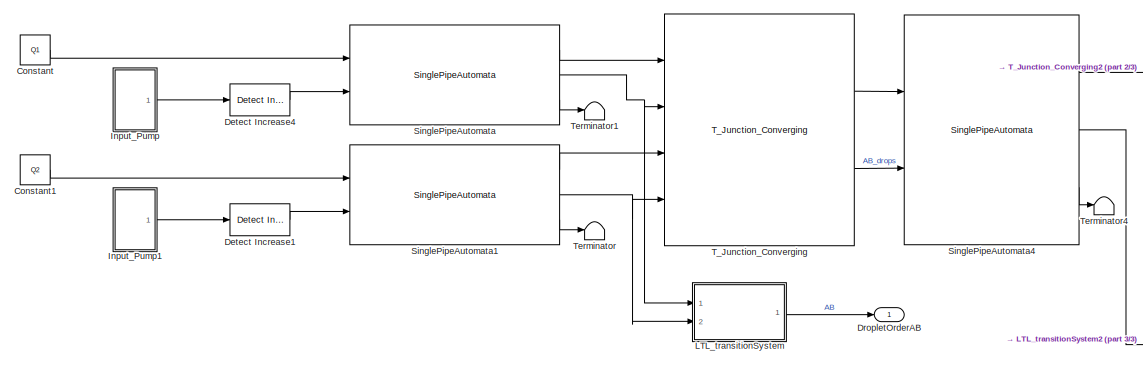
[diagram: root canvas - part 1/3, top left region]
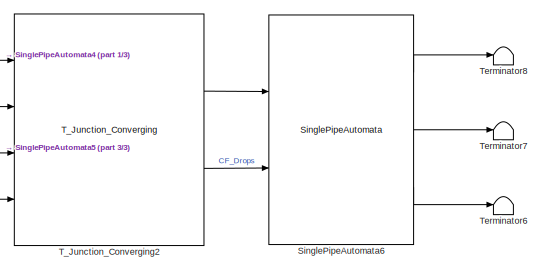
[diagram: root canvas - part 2/3, middle right region]
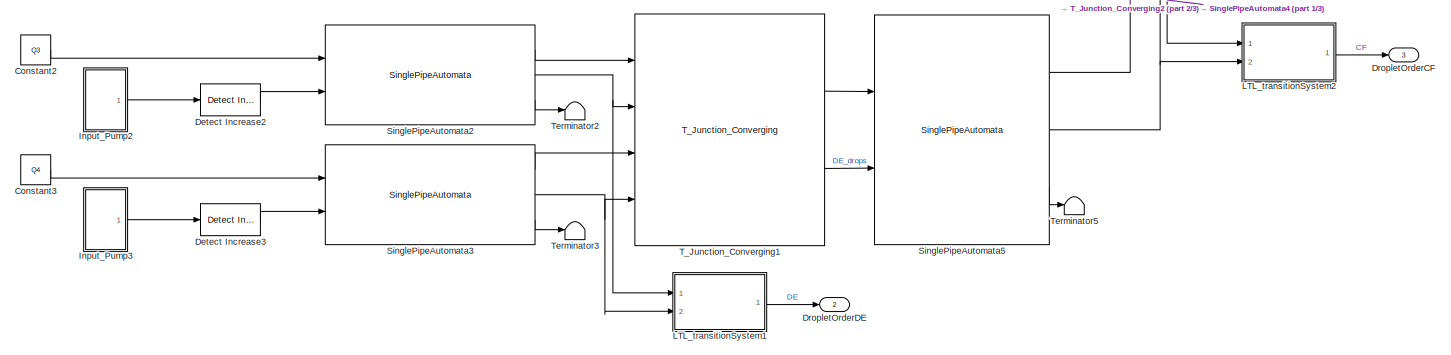
[diagram: root canvas - part 3/3, full width, bottom band]
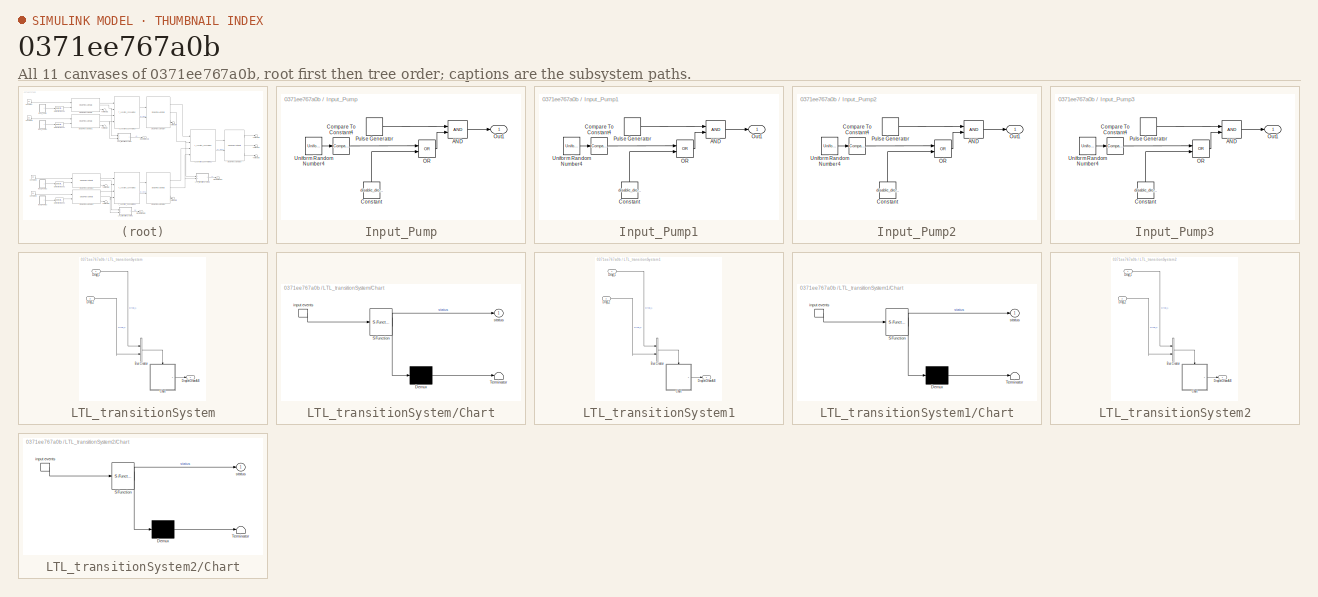
[diagram: thumbnail index - all 11 canvases of the model, root first then tree order]
MODEL slx_0371ee767a0b
KIND model
CONFIG AbsTol = auto
CONFIG EnableMultiTasking = off
CONFIG FixedStep = dt
CONFIG MaxStep = auto
CONFIG MinStep = auto
CONFIG RelTol = 1e-3
CONFIG SampleTimeConstraint = Unconstrained
CONFIG Solver = FixedStepAuto
CONFIG SolverName = FixedStepAuto
CONFIG StartTime = 0.0
CONFIG StopTime = 0.5
BLOCK [Constant] Constant
  Value = Q1
BLOCK [Constant] Constant1
  Value = Q2
BLOCK [Constant] Constant2
  Value = Q3
BLOCK [Constant] Constant3
  Value = Q4
BLOCK [Reference] Detect Increase1  REF=simulink/Logic and Bit
Operations/Detect
Increase
  Ports = [1, 1]
  SourceBlock = simulink/Logic and Bit\nOperations/Detect\nIncrease
  SourceProductBaseCode = SL
  SourceProductName = Simulink
  SourceType = Detect Increase
BLOCK [Reference] Detect Increase2  REF=simulink/Logic and Bit
Operations/Detect
Increase
  Ports = [1, 1]
  SourceBlock = simulink/Logic and Bit\nOperations/Detect\nIncrease
  SourceProductBaseCode = SL
  SourceProductName = Simulink
  SourceType = Detect Increase
BLOCK [Reference] Detect Increase3  REF=simulink/Logic and Bit
Operations/Detect
Increase
  Ports = [1, 1]
  SourceBlock = simulink/Logic and Bit\nOperations/Detect\nIncrease
  SourceProductBaseCode = SL
  SourceProductName = Simulink
  SourceType = Detect Increase
BLOCK [Reference] Detect Increase4  REF=simulink/Logic and Bit
Operations/Detect
Increase
  Ports = [1, 1]
  SourceBlock = simulink/Logic and Bit\nOperations/Detect\nIncrease
  SourceProductBaseCode = SL
  SourceProductName = Simulink
  SourceType = Detect Increase
BLOCK [Outport] DropletOrderAB
  IconDisplay = Port number
BLOCK [Outport] DropletOrderCF
  IconDisplay = Port number
  Port = 3
BLOCK [Outport] DropletOrderDE
  IconDisplay = Port number
  Port = 2
BLOCK [SubSystem] Input_Pump
  Ports = [0, 1]
  RequestExecContextInheritance = off
BLOCK [Logic] Input_Pump/AND
  AllPortsSameDT = off
  IconShape = distinctive
  OutDataTypeStr = boolean
  Ports = [2, 1]
BLOCK [Reference] Input_Pump/Compare To Constant4  REF=simulink/Logic and Bit
Operations/Compare
To Constant
  Ports = [1, 1]
  SourceBlock = simulink/Logic and Bit\nOperations/Compare\nTo Constant
  SourceProductBaseCode = SL
  SourceProductName = Simulink
  SourceType = Compare To Constant
BLOCK [Constant] Input_Pump/Constant
  Value = disable_droplet_faults
BLOCK [Logic] Input_Pump/OR
  AllPortsSameDT = off
  IconShape = distinctive
  Operator = OR
  OutDataTypeStr = boolean
  Ports = [2, 1]
BLOCK [Outport] Input_Pump/Out1
  IconDisplay = Port number
BLOCK [DiscretePulseGenerator] Input_Pump/Pulse Generator
  Period = Period
  PhaseDelay = PhaseDelay
  Ports = [0, 1]
  PulseType = Time based
  PulseWidth = 50
BLOCK [UniformRandomNumber] Input_Pump/Uniform Random Number4
  SampleTime = 0.001
  Seed = Seed
BLOCK [SubSystem] Input_Pump1
  Ports = [0, 1]
  RequestExecContextInheritance = off
BLOCK [Logic] Input_Pump1/AND
  AllPortsSameDT = off
  IconShape = distinctive
  OutDataTypeStr = boolean
  Ports = [2, 1]
BLOCK [Reference] Input_Pump1/Compare To Constant4  REF=simulink/Logic and Bit
Operations/Compare
To Constant
  Ports = [1, 1]
  SourceBlock = simulink/Logic and Bit\nOperations/Compare\nTo Constant
  SourceProductBaseCode = SL
  SourceProductName = Simulink
  SourceType = Compare To Constant
BLOCK [Constant] Input_Pump1/Constant
  Value = disable_droplet_faults
BLOCK [Logic] Input_Pump1/OR
  AllPortsSameDT = off
  IconShape = distinctive
  Operator = OR
  OutDataTypeStr = boolean
  Ports = [2, 1]
BLOCK [Outport] Input_Pump1/Out1
  IconDisplay = Port number
BLOCK [DiscretePulseGenerator] Input_Pump1/Pulse Generator
  Period = Period
  PhaseDelay = PhaseDelay
  Ports = [0, 1]
  PulseType = Time based
  PulseWidth = 50
BLOCK [UniformRandomNumber] Input_Pump1/Uniform Random Number4
  SampleTime = 0.001
  Seed = Seed
BLOCK [SubSystem] Input_Pump2
  Ports = [0, 1]
  RequestExecContextInheritance = off
BLOCK [Logic] Input_Pump2/AND
  AllPortsSameDT = off
  IconShape = distinctive
  OutDataTypeStr = boolean
  Ports = [2, 1]
BLOCK [Reference] Input_Pump2/Compare To Constant4  REF=simulink/Logic and Bit
Operations/Compare
To Constant
  Ports = [1, 1]
  SourceBlock = simulink/Logic and Bit\nOperations/Compare\nTo Constant
  SourceProductBaseCode = SL
  SourceProductName = Simulink
  SourceType = Compare To Constant
BLOCK [Constant] Input_Pump2/Constant
  Value = disable_droplet_faults
BLOCK [Logic] Input_Pump2/OR
  AllPortsSameDT = off
  IconShape = distinctive
  Operator = OR
  OutDataTypeStr = boolean
  Ports = [2, 1]
BLOCK [Outport] Input_Pump2/Out1
  IconDisplay = Port number
BLOCK [DiscretePulseGenerator] Input_Pump2/Pulse Generator
  Period = Period
  PhaseDelay = PhaseDelay
  Ports = [0, 1]
  PulseType = Time based
  PulseWidth = 50
BLOCK [UniformRandomNumber] Input_Pump2/Uniform Random Number4
  SampleTime = 0.001
  Seed = Seed
BLOCK [SubSystem] Input_Pump3
  Ports = [0, 1]
  RequestExecContextInheritance = off
BLOCK [Logic] Input_Pump3/AND
  AllPortsSameDT = off
  IconShape = distinctive
  OutDataTypeStr = boolean
  Ports = [2, 1]
BLOCK [Reference] Input_Pump3/Compare To Constant4  REF=simulink/Logic and Bit
Operations/Compare
To Constant
  Ports = [1, 1]
  SourceBlock = simulink/Logic and Bit\nOperations/Compare\nTo Constant
  SourceProductBaseCode = SL
  SourceProductName = Simulink
  SourceType = Compare To Constant
BLOCK [Constant] Input_Pump3/Constant
  Value = disable_droplet_faults
BLOCK [Logic] Input_Pump3/OR
  AllPortsSameDT = off
  IconShape = distinctive
  Operator = OR
  OutDataTypeStr = boolean
  Ports = [2, 1]
BLOCK [Outport] Input_Pump3/Out1
  IconDisplay = Port number
BLOCK [DiscretePulseGenerator] Input_Pump3/Pulse Generator
  Period = Period
  PhaseDelay = PhaseDelay
  Ports = [0, 1]
  PulseType = Time based
  PulseWidth = 50
BLOCK [UniformRandomNumber] Input_Pump3/Uniform Random Number4
  SampleTime = 0.001
  Seed = Seed
BLOCK [SubSystem] LTL_transitionSystem
  Ports = [2, 1]
  RequestExecContextInheritance = off
BLOCK [BusCreator] LTL_transitionSystem/Bus Creator
  DisplayOption = bar
  InheritFromInputs = on
  Inputs = 2
  Ports = [2, 1]
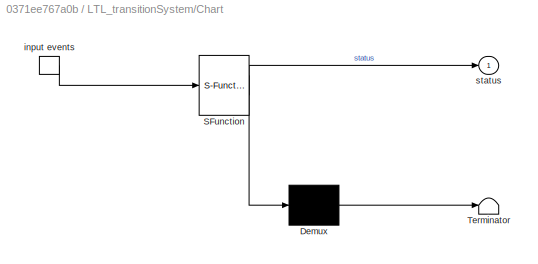
BLOCK [SubSystem] LTL_transitionSystem/Chart
  BlockKeywords = __PRM__SERIALIZED__DATA__:Stateflow Chart,Stateflow Diagram
  ErrorFcn = Stateflow.Translate.translate
  PermitHierarchicalResolution = ExplicitOnly
  Ports = [0, 1, 0, 1]
  RequestExecContextInheritance = off
  SFBlockType = Chart
  TreatAsAtomicUnit = on
BLOCK [Demux] LTL_transitionSystem/Chart/ Demux 
  Outputs = 1
  Ports = [1, 1]
BLOCK [S-Function] LTL_transitionSystem/Chart/ SFunction 
  EnableBusSupport = on
  FunctionName = sf_sfun
  PortCounts = [1 2]
  Ports = [1, 2]
  SFcnIsStateOwnerBlock = off
  SFunctionDeploymentMode = off
  Tag = Stateflow S-Function Realistic_Model 3
BLOCK [Terminator] LTL_transitionSystem/Chart/ Terminator 
BLOCK [TriggerPort] LTL_transitionSystem/Chart/input events
  Ports = [0, 1]
  ShowOutputPort = on
  StatesWhenEnabling = held
  VariantControl = (inherit)
BLOCK [Outport] LTL_transitionSystem/Chart/status
  IconDisplay = Port number
BLOCK [Inport] LTL_transitionSystem/Drop_1
  IconDisplay = Port number
BLOCK [Inport] LTL_transitionSystem/Drop_2
  IconDisplay = Port number
  Port = 2
BLOCK [Outport] LTL_transitionSystem/DropletOrderAB
  IconDisplay = Port number
BLOCK [SubSystem] LTL_transitionSystem1
  Ports = [2, 1]
  RequestExecContextInheritance = off
BLOCK [BusCreator] LTL_transitionSystem1/Bus Creator
  DisplayOption = bar
  InheritFromInputs = on
  Inputs = 2
  Ports = [2, 1]
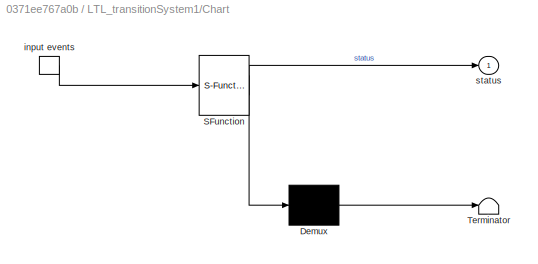
BLOCK [SubSystem] LTL_transitionSystem1/Chart
  BlockKeywords = __PRM__SERIALIZED__DATA__:Stateflow Chart,Stateflow Diagram
  ErrorFcn = Stateflow.Translate.translate
  PermitHierarchicalResolution = ExplicitOnly
  Ports = [0, 1, 0, 1]
  RequestExecContextInheritance = off
  SFBlockType = Chart
  TreatAsAtomicUnit = on
BLOCK [Demux] LTL_transitionSystem1/Chart/ Demux 
  Outputs = 1
  Ports = [1, 1]
BLOCK [S-Function] LTL_transitionSystem1/Chart/ SFunction 
  EnableBusSupport = on
  FunctionName = sf_sfun
  PortCounts = [1 2]
  Ports = [1, 2]
  SFcnIsStateOwnerBlock = off
  SFunctionDeploymentMode = off
  Tag = Stateflow S-Function Realistic_Model 1
BLOCK [Terminator] LTL_transitionSystem1/Chart/ Terminator 
BLOCK [TriggerPort] LTL_transitionSystem1/Chart/input events
  Ports = [0, 1]
  ShowOutputPort = on
  StatesWhenEnabling = held
  VariantControl = (inherit)
BLOCK [Outport] LTL_transitionSystem1/Chart/status
  IconDisplay = Port number
BLOCK [Inport] LTL_transitionSystem1/Drop_1
  IconDisplay = Port number
BLOCK [Inport] LTL_transitionSystem1/Drop_2
  IconDisplay = Port number
  Port = 2
BLOCK [Outport] LTL_transitionSystem1/DropletOrderAB
  IconDisplay = Port number
BLOCK [SubSystem] LTL_transitionSystem2
  Ports = [2, 1]
  RequestExecContextInheritance = off
BLOCK [BusCreator] LTL_transitionSystem2/Bus Creator
  DisplayOption = bar
  InheritFromInputs = on
  Inputs = 2
  Ports = [2, 1]
BLOCK [SubSystem] LTL_transitionSystem2/Chart
  BlockKeywords = __PRM__SERIALIZED__DATA__:Stateflow Chart,Stateflow Diagram
  ErrorFcn = Stateflow.Translate.translate
  PermitHierarchicalResolution = ExplicitOnly
  Ports = [0, 1, 0, 1]
  RequestExecContextInheritance = off
  SFBlockType = Chart
  TreatAsAtomicUnit = on
BLOCK [Demux] LTL_transitionSystem2/Chart/ Demux 
  Outputs = 1
  Ports = [1, 1]
BLOCK [S-Function] LTL_transitionSystem2/Chart/ SFunction 
  EnableBusSupport = on
  FunctionName = sf_sfun
  PortCounts = [1 2]
  Ports = [1, 2]
  SFcnIsStateOwnerBlock = off
  SFunctionDeploymentMode = off
  Tag = Stateflow S-Function Realistic_Model 2
BLOCK [Terminator] LTL_transitionSystem2/Chart/ Terminator 
BLOCK [TriggerPort] LTL_transitionSystem2/Chart/input events
  Ports = [0, 1]
  ShowOutputPort = on
  StatesWhenEnabling = held
  VariantControl = (inherit)
BLOCK [Outport] LTL_transitionSystem2/Chart/status
  IconDisplay = Port number
BLOCK [Inport] LTL_transitionSystem2/Drop_1
  IconDisplay = Port number
BLOCK [Inport] LTL_transitionSystem2/Drop_2
  IconDisplay = Port number
  Port = 2
BLOCK [Outport] LTL_transitionSystem2/DropletOrderAB
  IconDisplay = Port number
BLOCK [Reference] SinglePipeAutomata  REF=SinglePipe_lib/SinglePipeAutomata
  Ports = [2, 3]
  SourceBlock = SinglePipe_lib/SinglePipeAutomata
BLOCK [Reference] SinglePipeAutomata1  REF=SinglePipe_lib/SinglePipeAutomata
  Ports = [2, 3]
  SourceBlock = SinglePipe_lib/SinglePipeAutomata
BLOCK [Reference] SinglePipeAutomata2  REF=SinglePipe_lib/SinglePipeAutomata
  Ports = [2, 3]
  SourceBlock = SinglePipe_lib/SinglePipeAutomata
BLOCK [Reference] SinglePipeAutomata3  REF=SinglePipe_lib/SinglePipeAutomata
  Ports = [2, 3]
  SourceBlock = SinglePipe_lib/SinglePipeAutomata
BLOCK [Reference] SinglePipeAutomata4  REF=SinglePipe_lib/SinglePipeAutomata
  Ports = [2, 3]
  SourceBlock = SinglePipe_lib/SinglePipeAutomata
BLOCK [Reference] SinglePipeAutomata5  REF=SinglePipe_lib/SinglePipeAutomata
  Ports = [2, 3]
  SourceBlock = SinglePipe_lib/SinglePipeAutomata
BLOCK [Reference] SinglePipeAutomata6  REF=SinglePipe_lib/SinglePipeAutomata
  Ports = [2, 3]
  SourceBlock = SinglePipe_lib/SinglePipeAutomata
BLOCK [Reference] T_Junction_Converging  REF=Junction_Lib/T_Junction_Converging
  Ports = [4, 2]
  SourceBlock = Junction_Lib/T_Junction_Converging
  SourceType = SubSystem
BLOCK [Reference] T_Junction_Converging1  REF=Junction_Lib/T_Junction_Converging
  Ports = [4, 2]
  SourceBlock = Junction_Lib/T_Junction_Converging
  SourceType = SubSystem
BLOCK [Reference] T_Junction_Converging2  REF=Junction_Lib/T_Junction_Converging
  Ports = [4, 2]
  SourceBlock = Junction_Lib/T_Junction_Converging
  SourceType = SubSystem
BLOCK [Terminator] Terminator
BLOCK [Terminator] Terminator1
BLOCK [Terminator] Terminator2
BLOCK [Terminator] Terminator3
BLOCK [Terminator] Terminator4
BLOCK [Terminator] Terminator5
BLOCK [Terminator] Terminator6
BLOCK [Terminator] Terminator7
BLOCK [Terminator] Terminator8
LINE Constant1:1 -> SinglePipeAutomata1:1
LINE Constant2:1 -> SinglePipeAutomata2:1
LINE Constant3:1 -> SinglePipeAutomata3:1
LINE Constant:1 -> SinglePipeAutomata:1
LINE Detect Increase1:1 -> SinglePipeAutomata1:2
LINE Detect Increase2:1 -> SinglePipeAutomata2:2
LINE Detect Increase3:1 -> SinglePipeAutomata3:2
LINE Detect Increase4:1 -> SinglePipeAutomata:2
LINE Input_Pump/AND:1 -> Input_Pump/Out1:1
LINE Input_Pump/Compare To Constant4:1 -> Input_Pump/OR:1
LINE Input_Pump/Constant:1 -> Input_Pump/OR:2
LINE Input_Pump/OR:1 -> Input_Pump/AND:2
LINE Input_Pump/Pulse Generator:1 -> Input_Pump/AND:1
LINE Input_Pump/Uniform Random Number4:1 -> Input_Pump/Compare To Constant4:1
LINE Input_Pump1/AND:1 -> Input_Pump1/Out1:1
LINE Input_Pump1/Compare To Constant4:1 -> Input_Pump1/OR:1
LINE Input_Pump1/Constant:1 -> Input_Pump1/OR:2
LINE Input_Pump1/OR:1 -> Input_Pump1/AND:2
LINE Input_Pump1/Pulse Generator:1 -> Input_Pump1/AND:1
LINE Input_Pump1/Uniform Random Number4:1 -> Input_Pump1/Compare To Constant4:1
LINE Input_Pump1:1 -> Detect Increase1:1
LINE Input_Pump2/AND:1 -> Input_Pump2/Out1:1
LINE Input_Pump2/Compare To Constant4:1 -> Input_Pump2/OR:1
LINE Input_Pump2/Constant:1 -> Input_Pump2/OR:2
LINE Input_Pump2/OR:1 -> Input_Pump2/AND:2
LINE Input_Pump2/Pulse Generator:1 -> Input_Pump2/AND:1
LINE Input_Pump2/Uniform Random Number4:1 -> Input_Pump2/Compare To Constant4:1
LINE Input_Pump2:1 -> Detect Increase2:1
LINE Input_Pump3/AND:1 -> Input_Pump3/Out1:1
LINE Input_Pump3/Compare To Constant4:1 -> Input_Pump3/OR:1
LINE Input_Pump3/Constant:1 -> Input_Pump3/OR:2
LINE Input_Pump3/OR:1 -> Input_Pump3/AND:2
LINE Input_Pump3/Pulse Generator:1 -> Input_Pump3/AND:1
LINE Input_Pump3/Uniform Random Number4:1 -> Input_Pump3/Compare To Constant4:1
LINE Input_Pump3:1 -> Detect Increase3:1
LINE Input_Pump:1 -> Detect Increase4:1
LINE LTL_transitionSystem/Bus Creator:1 -> LTL_transitionSystem/Chart:trigger
LINE LTL_transitionSystem/Chart:1 -> LTL_transitionSystem/DropletOrderAB:1
LINE LTL_transitionSystem/Drop_1:1 -> LTL_transitionSystem/Bus Creator:1
LINE LTL_transitionSystem/Drop_2:1 -> LTL_transitionSystem/Bus Creator:2
LINE LTL_transitionSystem1/Bus Creator:1 -> LTL_transitionSystem1/Chart:trigger
LINE LTL_transitionSystem1/Chart:1 -> LTL_transitionSystem1/DropletOrderAB:1
LINE LTL_transitionSystem1/Drop_1:1 -> LTL_transitionSystem1/Bus Creator:1
LINE LTL_transitionSystem1/Drop_2:1 -> LTL_transitionSystem1/Bus Creator:2
LINE LTL_transitionSystem1:1 -> DropletOrderDE:1
LINE LTL_transitionSystem2/Bus Creator:1 -> LTL_transitionSystem2/Chart:trigger
LINE LTL_transitionSystem2/Chart:1 -> LTL_transitionSystem2/DropletOrderAB:1
LINE LTL_transitionSystem2/Drop_1:1 -> LTL_transitionSystem2/Bus Creator:1
LINE LTL_transitionSystem2/Drop_2:1 -> LTL_transitionSystem2/Bus Creator:2
LINE LTL_transitionSystem2:1 -> DropletOrderCF:1
LINE LTL_transitionSystem:1 -> DropletOrderAB:1
LINE SinglePipeAutomata1:1 -> T_Junction_Converging:3
NET SinglePipeAutomata1:2 -> LTL_transitionSystem:2, T_Junction_Converging:4
LINE SinglePipeAutomata1:3 -> Terminator:1
LINE SinglePipeAutomata2:1 -> T_Junction_Converging1:1
NET SinglePipeAutomata2:2 -> LTL_transitionSystem1:1, T_Junction_Converging1:2
LINE SinglePipeAutomata2:3 -> Terminator2:1
LINE SinglePipeAutomata3:1 -> T_Junction_Converging1:3
NET SinglePipeAutomata3:2 -> LTL_transitionSystem1:2, T_Junction_Converging1:4
LINE SinglePipeAutomata3:3 -> Terminator3:1
LINE SinglePipeAutomata4:1 -> T_Junction_Converging2:1
NET SinglePipeAutomata4:2 -> LTL_transitionSystem2:1, T_Junction_Converging2:2
LINE SinglePipeAutomata4:3 -> Terminator4:1
LINE SinglePipeAutomata5:1 -> T_Junction_Converging2:3
NET SinglePipeAutomata5:2 -> LTL_transitionSystem2:2, T_Junction_Converging2:4
LINE SinglePipeAutomata5:3 -> Terminator5:1
LINE SinglePipeAutomata6:1 -> Terminator8:1
LINE SinglePipeAutomata6:2 -> Terminator7:1
LINE SinglePipeAutomata6:3 -> Terminator6:1
LINE SinglePipeAutomata:1 -> T_Junction_Converging:1
NET SinglePipeAutomata:2 -> LTL_transitionSystem:1, T_Junction_Converging:2
LINE SinglePipeAutomata:3 -> Terminator1:1
LINE T_Junction_Converging1:1 -> SinglePipeAutomata5:1
LINE T_Junction_Converging1:2 -> SinglePipeAutomata5:2
LINE T_Junction_Converging2:1 -> SinglePipeAutomata6:1
LINE T_Junction_Converging2:2 -> SinglePipeAutomata6:2
LINE T_Junction_Converging:1 -> SinglePipeAutomata4:1
LINE T_Junction_Converging:2 -> SinglePipeAutomata4:2
note: NET lines group one-source signal fan-out (src -> all destinations, sorted); 1:1 wires keep LINE
CHART LTL_transitionSystem1/Chart states=4 transitions=11
  STATE_LABEL 'null\nen:status=0;'
  STATE_LABEL 'State_A\nen:status=1;'
  STATE_LABEL 'State_B\nen:status=1;'
  STATE_LABEL 'Error\nen:status=2;'
CHART LTL_transitionSystem2/Chart states=4 transitions=11
  STATE_LABEL 'null\nen:status=0;'
  STATE_LABEL 'State_A\nen:status=1;'
  STATE_LABEL 'State_B\nen:status=1;'
  STATE_LABEL 'Error\nen:status=2;'
CHART LTL_transitionSystem/Chart states=4 transitions=11
  STATE_LABEL 'null\nen:status=0;'
  STATE_LABEL 'State_A\nen:status=1;'
  STATE_LABEL 'Error\nen:status=2;'
  STATE_LABEL 'State_B\nen:status=1;'
